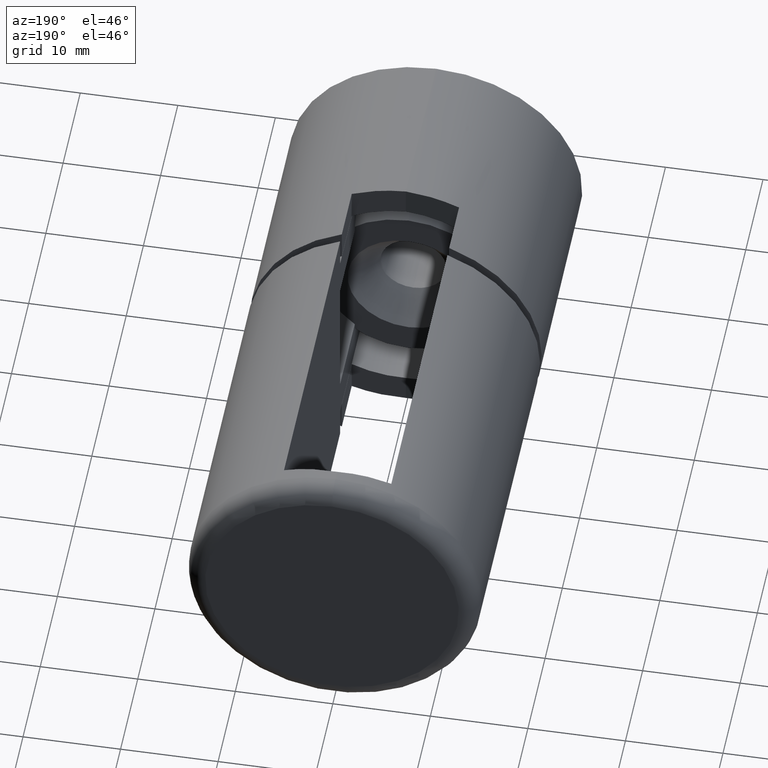
[diagram: clean part render]
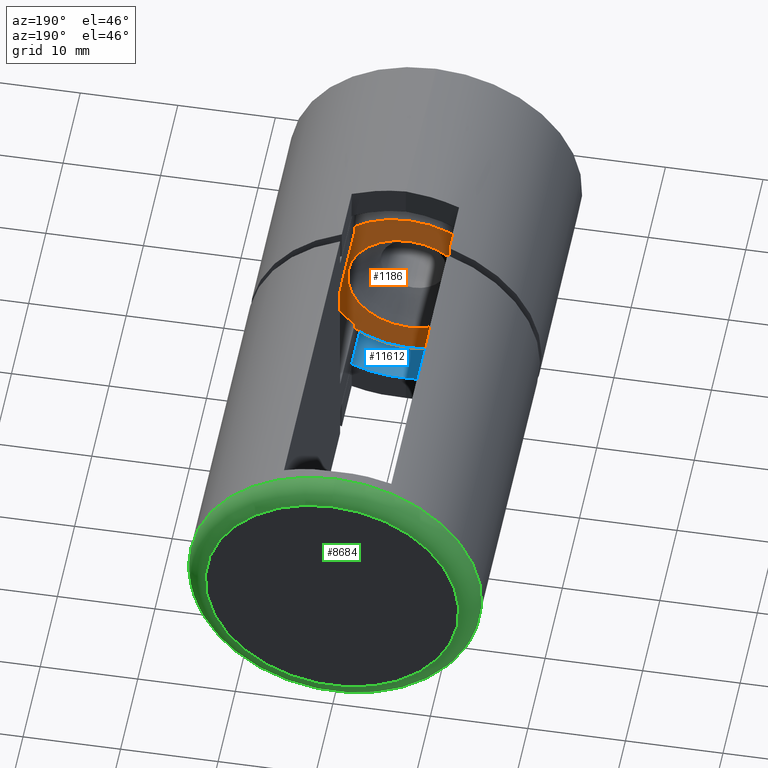
[diagram: same view with three faces highlighted in distinct colors, each labeled with its STEP entity id]
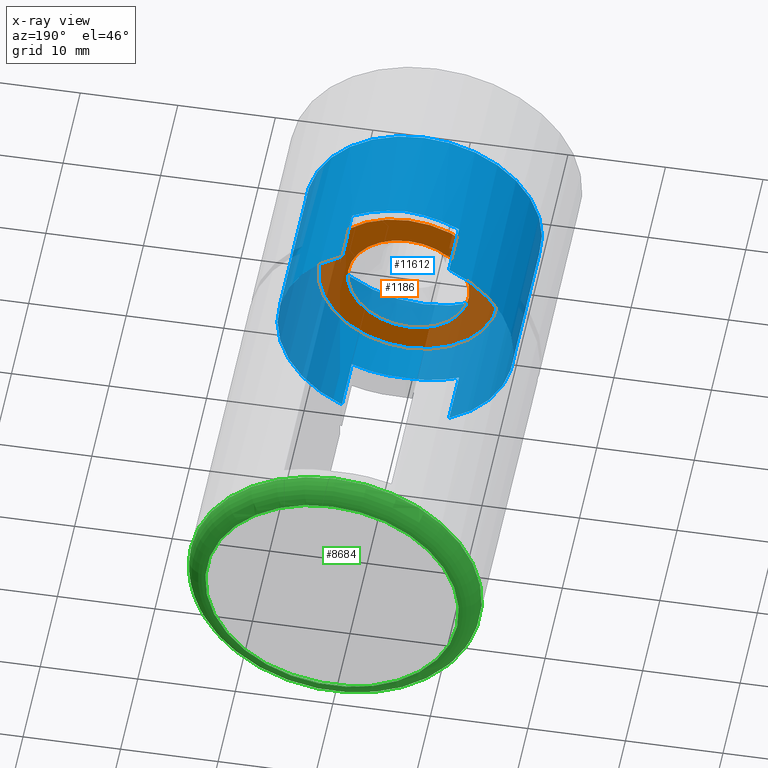
[diagram: x-ray of the same camera — body ghosted, the three highlighted faces saturated]
A machine part, auxiliary view with three faces highlighted in distinct colors.
The next image is the same camera in x-ray (body ghosted, the three faces saturated) — at least one of them is partly hidden behind the body in this view.
Their STEP definitions:

[orange] entity #1186 — the highlighted planar face has unit normal (0, 1, 0).
#1029 = CARTESIAN_POINT ( 'NONE',  ( 0.0000000000000000000, 16.00000000000000000, 0.0000000000000000000 ) ) ;
#1056 = VERTEX_POINT ( 'NONE', #2191 ) ;
#1186 = ADVANCED_FACE ( 'NONE', ( #15478, #1665 ), #15160, .T. ) ;
#1241 = CIRCLE ( 'NONE', #10365, 6.250000000000000000 ) ;
#1665 = FACE_OUTER_BOUND ( 'NONE', #1879, .T. ) ;
#1835 = ORIENTED_EDGE ( 'NONE', *, *, #12628, .F. ) ;
#1879 = EDGE_LOOP ( 'NONE', ( #3131 ) ) ;
#2084 = VERTEX_POINT ( 'NONE', #11602 ) ;
#2191 = CARTESIAN_POINT ( 'NONE',  ( 0.0000000000000000000, 16.00000000000000000, 6.250000000000000000 ) ) ;
#3131 = ORIENTED_EDGE ( 'NONE', *, *, #6588, .T. ) ;
#5511 = DIRECTION ( 'NONE',  ( 0.0000000000000000000, 1.000000000000000000, 0.0000000000000000000 ) ) ;
#5566 = DIRECTION ( 'NONE',  ( 0.0000000000000000000, 0.0000000000000000000, 1.000000000000000000 ) ) ;
#6588 = EDGE_CURVE ( 'NONE', #2084, #2084, #9336, .T. ) ;
#7055 = DIRECTION ( 'NONE',  ( 0.0000000000000000000, 1.000000000000000000, 0.0000000000000000000 ) ) ;
#7738 = AXIS2_PLACEMENT_3D ( 'NONE', #11166, #7055, #8391 ) ;
#8391 = DIRECTION ( 'NONE',  ( 0.0000000000000000000, -0.0000000000000000000, 1.000000000000000000 ) ) ;
#9254 = DIRECTION ( 'NONE',  ( 0.0000000000000000000, 0.0000000000000000000, 1.000000000000000000 ) ) ;
#9336 = CIRCLE ( 'NONE', #11223, 9.250000000000001800 ) ;
#10365 = AXIS2_PLACEMENT_3D ( 'NONE', #1029, #17257, #9254 ) ;
#10753 = CARTESIAN_POINT ( 'NONE',  ( 0.0000000000000000000, 16.00000000000000000, 0.0000000000000000000 ) ) ;
#11166 = CARTESIAN_POINT ( 'NONE',  ( 0.0000000000000000000, 16.00000000000000000, 0.0000000000000000000 ) ) ;
#11223 = AXIS2_PLACEMENT_3D ( 'NONE', #10753, #5511, #5566 ) ;
#11602 = CARTESIAN_POINT ( 'NONE',  ( 0.0000000000000000000, 16.00000000000000000, 9.250000000000001800 ) ) ;
#12628 = EDGE_CURVE ( 'NONE', #1056, #1056, #1241, .T. ) ;
#13186 = EDGE_LOOP ( 'NONE', ( #1835 ) ) ;
#15160 = PLANE ( 'NONE',  #7738 ) ;
#15478 = FACE_BOUND ( 'NONE', #13186, .T. ) ;
#17257 = DIRECTION ( 'NONE',  ( -0.0000000000000000000, 1.000000000000000000, -0.0000000000000000000 ) ) ;

[blue] entity #11612 — the highlighted cylindrical surface (bore or boss wall) has radius 12.1 mm, axis along (0, 1, -0).
#542 = CARTESIAN_POINT ( 'NONE',  ( 3.788877381451983600, 5.851433350462343700, -11.65095847299133100 ) ) ;
#561 = CARTESIAN_POINT ( 'NONE',  ( -5.500000000000000900, 5.761757213943252700, 10.77775486824598300 ) ) ;
#611 = EDGE_CURVE ( 'NONE', #6868, #10276, #17050, .T. ) ;
#756 = CARTESIAN_POINT ( 'NONE',  ( 5.500000000000000900, 16.55000000000000100, 10.77775486824598300 ) ) ;
#763 = AXIS2_PLACEMENT_3D ( 'NONE', #12480, #11371, #13834 ) ;
#778 = VERTEX_POINT ( 'NONE', #2484 ) ;
#1234 = CARTESIAN_POINT ( 'NONE',  ( -5.500000000000000900, 16.55000000000000100, 10.77775486824598300 ) ) ;
#1630 = AXIS2_PLACEMENT_3D ( 'NONE', #6957, #8680, #16579 ) ;
#1793 = LINE ( 'NONE', #7098, #11195 ) ;
#1808 = ORIENTED_EDGE ( 'NONE', *, *, #4570, .F. ) ;
#1913 = CARTESIAN_POINT ( 'NONE',  ( -5.500000000000000900, 5.761757213943252700, -10.77775486824598700 ) ) ;
#1966 = CARTESIAN_POINT ( 'NONE',  ( -5.500000000000000900, 5.761757213943252700, 10.77775486824598300 ) ) ;
#2085 = CARTESIAN_POINT ( 'NONE',  ( 0.0000000000000000000, 6.050000000000001600, -12.10000000000000500 ) ) ;
#2217 = ORIENTED_EDGE ( 'NONE', *, *, #15768, .F. ) ;
#2390 = AXIS2_PLACEMENT_3D ( 'NONE', #6867, #11037, #5976 ) ;
#2404 = CIRCLE ( 'NONE', #1630, 12.10000000000000000 ) ;
#2484 = CARTESIAN_POINT ( 'NONE',  ( 0.0000000000000000000, 6.050000000000001600, 12.09999999999999600 ) ) ;
#2566 = DIRECTION ( 'NONE',  ( 0.0000000000000000000, 1.000000000000000000, 0.0000000000000000000 ) ) ;
#2578 = ORIENTED_EDGE ( 'NONE', *, *, #611, .F. ) ;
#2649 = VERTEX_POINT ( 'NONE', #7808 ) ;
#3348 = AXIS2_PLACEMENT_3D ( 'NONE', #8487, #12509, #8610 ) ;
#3674 =( BOUNDED_CURVE ( )  B_SPLINE_CURVE ( 3, ( #15245, #7202, #7382, #7255 ),
 .UNSPECIFIED., .F., .T. ) 
 B_SPLINE_CURVE_WITH_KNOTS ( ( 4, 4 ),
 ( 4.712388980384689700, 5.184250817664331400 ),
 .UNSPECIFIED. ) 
 CURVE ( )  GEOMETRIC_REPRESENTATION_ITEM ( )  RATIONAL_B_SPLINE_CURVE ( ( 1.000000000000000000, 0.9815314413956836000, 0.9815314413956836000, 1.000000000000000000 ) ) 
 REPRESENTATION_ITEM ( '' )  );
#3722 = CARTESIAN_POINT ( 'NONE',  ( -5.500000000000000900, 5.761757213943252700, -10.77775486824598700 ) ) ;
#3823 = CARTESIAN_POINT ( 'NONE',  ( 5.500000000000000000, 0.0000000000000000000, 10.77775486824598300 ) ) ;
#4181 = VERTEX_POINT ( 'NONE', #8723 ) ;
#4413 = VECTOR ( 'NONE', #10252, 1000.000000000000000 ) ;
#4570 = EDGE_CURVE ( 'NONE', #7669, #15937, #17064, .T. ) ;
#4578 = CYLINDRICAL_SURFACE ( 'NONE', #2390, 12.10000000000000000 ) ;
#4595 = EDGE_CURVE ( 'NONE', #4181, #13149, #10641, .T. ) ;
#4776 = CARTESIAN_POINT ( 'NONE',  ( -1.921047930439759200, 5.949322144069364000, -12.10000000000000000 ) ) ;
#4812 = CARTESIAN_POINT ( 'NONE',  ( 1.921047930439763000, 5.949322144069364000, -12.10000000000000000 ) ) ;
#4894 = ORIENTED_EDGE ( 'NONE', *, *, #8502, .F. ) ;
#5009 = CARTESIAN_POINT ( 'NONE',  ( -3.788877381451979600, 5.851433350462343700, -11.65095847299133400 ) ) ;
#5509 = CIRCLE ( 'NONE', #3348, 12.10000000000000000 ) ;
#5976 = DIRECTION ( 'NONE',  ( 0.0000000000000000000, 0.0000000000000000000, -1.000000000000000000 ) ) ;
#6073 = CIRCLE ( 'NONE', #763, 12.10000000000000000 ) ;
#6294 = FACE_OUTER_BOUND ( 'NONE', #12872, .T. ) ;
#6557 = DIRECTION ( 'NONE',  ( -0.0000000000000000000, -1.000000000000000000, -0.0000000000000000000 ) ) ;
#6867 = CARTESIAN_POINT ( 'NONE',  ( 0.0000000000000000000, 16.55000000000000100, 0.0000000000000000000 ) ) ;
#6868 = VERTEX_POINT ( 'NONE', #16888 ) ;
#6957 = CARTESIAN_POINT ( 'NONE',  ( 0.0000000000000000000, 0.0000000000000000000, 0.0000000000000000000 ) ) ;
#7018 = EDGE_LOOP ( 'NONE', ( #2578, #4894, #10635, #16795, #17135, #2217, #15823, #1808, #17189, #10526 ) ) ;
#7098 = CARTESIAN_POINT ( 'NONE',  ( -5.500000000000000900, 16.55000000000000100, -10.77775486824598300 ) ) ;
#7202 = CARTESIAN_POINT ( 'NONE',  ( 1.921047930439759200, 5.949322144069364000, 12.10000000000000000 ) ) ;
#7255 = CARTESIAN_POINT ( 'NONE',  ( 5.500000000000000900, 5.761757213943252700, 10.77775486824598300 ) ) ;
#7382 = CARTESIAN_POINT ( 'NONE',  ( 3.788877381451979600, 5.851433350462343700, 11.65095847299133400 ) ) ;
#7477 = CARTESIAN_POINT ( 'NONE',  ( 5.500000000000000900, 16.55000000000000100, -10.77775486824598300 ) ) ;
#7637 = CARTESIAN_POINT ( 'NONE',  ( 5.500000000000000900, 5.761757213943252700, 10.77775486824598300 ) ) ;
#7669 = VERTEX_POINT ( 'NONE', #7637 ) ;
#7808 = CARTESIAN_POINT ( 'NONE',  ( 5.500000000000000900, 0.0000000000000000000, -10.77775486824598300 ) ) ;
#7853 =( BOUNDED_CURVE ( )  B_SPLINE_CURVE ( 3, ( #561, #14522, #14754, #14932 ),
 .UNSPECIFIED., .F., .T. ) 
 B_SPLINE_CURVE_WITH_KNOTS ( ( 4, 4 ),
 ( 1.098934489515254600, 1.570796326794896600 ),
 .UNSPECIFIED. ) 
 CURVE ( )  GEOMETRIC_REPRESENTATION_ITEM ( )  RATIONAL_B_SPLINE_CURVE ( ( 1.000000000000000000, 0.9815314413956836000, 0.9815314413956836000, 1.000000000000000000 ) ) 
 REPRESENTATION_ITEM ( '' )  );
#7913 = EDGE_CURVE ( 'NONE', #9173, #4181, #8926, .T. ) ;
#8139 = EDGE_CURVE ( 'NONE', #13149, #8997, #1793, .T. ) ;
#8373 = FACE_OUTER_BOUND ( 'NONE', #7018, .T. ) ;
#8487 = CARTESIAN_POINT ( 'NONE',  ( 0.0000000000000000000, 0.0000000000000000000, 0.0000000000000000000 ) ) ;
#8502 = EDGE_CURVE ( 'NONE', #8997, #6868, #2404, .T. ) ;
#8556 = CARTESIAN_POINT ( 'NONE',  ( 5.500000000000000900, 5.761757213943252700, -10.77775486824598300 ) ) ;
#8588 = VERTEX_POINT ( 'NONE', #11717 ) ;
#8610 = DIRECTION ( 'NONE',  ( 0.0000000000000000000, 0.0000000000000000000, 1.000000000000000000 ) ) ;
#8680 = DIRECTION ( 'NONE',  ( 0.0000000000000000000, 1.000000000000000000, 0.0000000000000000000 ) ) ;
#8723 = CARTESIAN_POINT ( 'NONE',  ( 0.0000000000000000000, 6.050000000000001600, -12.10000000000000500 ) ) ;
#8926 =( BOUNDED_CURVE ( )  B_SPLINE_CURVE ( 3, ( #8556, #542, #4812, #10180 ),
 .UNSPECIFIED., .F., .F. ) 
 B_SPLINE_CURVE_WITH_KNOTS ( ( 4, 4 ),
 ( 1.098934489515254600, 1.570796326794896600 ),
 .UNSPECIFIED. ) 
 CURVE ( )  GEOMETRIC_REPRESENTATION_ITEM ( )  RATIONAL_B_SPLINE_CURVE ( ( 1.000000000000000000, 0.9815314413956836000, 0.9815314413956836000, 1.000000000000000000 ) ) 
 REPRESENTATION_ITEM ( '' )  );
#8997 = VERTEX_POINT ( 'NONE', #10897 ) ;
#9173 = VERTEX_POINT ( 'NONE', #10172 ) ;
#9481 = EDGE_CURVE ( 'NONE', #10276, #778, #7853, .T. ) ;
#10172 = CARTESIAN_POINT ( 'NONE',  ( 5.500000000000000900, 5.761757213943252700, -10.77775486824598300 ) ) ;
#10180 = CARTESIAN_POINT ( 'NONE',  ( 0.0000000000000000000, 6.050000000000001600, -12.10000000000000500 ) ) ;
#10252 = DIRECTION ( 'NONE',  ( 0.0000000000000000000, 1.000000000000000000, 0.0000000000000000000 ) ) ;
#10276 = VERTEX_POINT ( 'NONE', #1966 ) ;
#10526 = ORIENTED_EDGE ( 'NONE', *, *, #9481, .F. ) ;
#10635 = ORIENTED_EDGE ( 'NONE', *, *, #8139, .F. ) ;
#10641 =( BOUNDED_CURVE ( )  B_SPLINE_CURVE ( 3, ( #2085, #4776, #5009, #3722 ),
 .UNSPECIFIED., .F., .F. ) 
 B_SPLINE_CURVE_WITH_KNOTS ( ( 4, 4 ),
 ( 4.712388980384689700, 5.184250817664331400 ),
 .UNSPECIFIED. ) 
 CURVE ( )  GEOMETRIC_REPRESENTATION_ITEM ( )  RATIONAL_B_SPLINE_CURVE ( ( 1.000000000000000000, 0.9815314413956836000, 0.9815314413956836000, 1.000000000000000000 ) ) 
 REPRESENTATION_ITEM ( '' )  );
#10785 = VECTOR ( 'NONE', #2566, 1000.000000000000000 ) ;
#10897 = CARTESIAN_POINT ( 'NONE',  ( -5.500000000000000000, 0.0000000000000000000, -10.77775486824598300 ) ) ;
#11037 = DIRECTION ( 'NONE',  ( -0.0000000000000000000, -1.000000000000000000, -0.0000000000000000000 ) ) ;
#11195 = VECTOR ( 'NONE', #6557, 1000.000000000000000 ) ;
#11371 = DIRECTION ( 'NONE',  ( 0.0000000000000000000, 1.000000000000000000, 0.0000000000000000000 ) ) ;
#11438 = DIRECTION ( 'NONE',  ( -0.0000000000000000000, -1.000000000000000000, -0.0000000000000000000 ) ) ;
#11612 = ADVANCED_FACE ( 'NONE', ( #8373, #6294 ), #4578, .F. ) ;
#11717 = CARTESIAN_POINT ( 'NONE',  ( 0.0000000000000000000, 16.55000000000000100, 12.10000000000000000 ) ) ;
#12249 = EDGE_CURVE ( 'NONE', #8588, #8588, #6073, .T. ) ;
#12480 = CARTESIAN_POINT ( 'NONE',  ( 0.0000000000000000000, 16.55000000000000100, 0.0000000000000000000 ) ) ;
#12509 = DIRECTION ( 'NONE',  ( 0.0000000000000000000, 1.000000000000000000, 0.0000000000000000000 ) ) ;
#12872 = EDGE_LOOP ( 'NONE', ( #14560 ) ) ;
#13149 = VERTEX_POINT ( 'NONE', #1913 ) ;
#13834 = DIRECTION ( 'NONE',  ( 0.0000000000000000000, 0.0000000000000000000, 1.000000000000000000 ) ) ;
#14522 = CARTESIAN_POINT ( 'NONE',  ( -3.788877381451983600, 5.851433350462343700, 11.65095847299133100 ) ) ;
#14560 = ORIENTED_EDGE ( 'NONE', *, *, #12249, .T. ) ;
#14747 = EDGE_CURVE ( 'NONE', #15937, #2649, #5509, .T. ) ;
#14754 = CARTESIAN_POINT ( 'NONE',  ( -1.921047930439763000, 5.949322144069364000, 12.10000000000000000 ) ) ;
#14932 = CARTESIAN_POINT ( 'NONE',  ( 0.0000000000000000000, 6.050000000000001600, 12.09999999999999600 ) ) ;
#15245 = CARTESIAN_POINT ( 'NONE',  ( 0.0000000000000000000, 6.050000000000001600, 12.09999999999999600 ) ) ;
#15768 = EDGE_CURVE ( 'NONE', #2649, #9173, #16509, .T. ) ;
#15810 = VECTOR ( 'NONE', #11438, 1000.000000000000000 ) ;
#15823 = ORIENTED_EDGE ( 'NONE', *, *, #14747, .F. ) ;
#15937 = VERTEX_POINT ( 'NONE', #3823 ) ;
#16073 = EDGE_CURVE ( 'NONE', #778, #7669, #3674, .T. ) ;
#16509 = LINE ( 'NONE', #7477, #4413 ) ;
#16579 = DIRECTION ( 'NONE',  ( 0.0000000000000000000, 0.0000000000000000000, 1.000000000000000000 ) ) ;
#16795 = ORIENTED_EDGE ( 'NONE', *, *, #4595, .F. ) ;
#16888 = CARTESIAN_POINT ( 'NONE',  ( -5.500000000000000000, 0.0000000000000000000, 10.77775486824598300 ) ) ;
#17050 = LINE ( 'NONE', #1234, #10785 ) ;
#17064 = LINE ( 'NONE', #756, #15810 ) ;
#17135 = ORIENTED_EDGE ( 'NONE', *, *, #7913, .F. ) ;
#17189 = ORIENTED_EDGE ( 'NONE', *, *, #16073, .F. ) ;

[green] entity #8684 — the highlighted toroidal blend (fillet) surface has major radius 13 mm and minor (blend) radius 2 mm.
#121 = FACE_OUTER_BOUND ( 'NONE', #10129, .T. ) ;
#397 = CIRCLE ( 'NONE', #1356, 15.00000000000000000 ) ;
#1268 = ORIENTED_EDGE ( 'NONE', *, *, #10181, .F. ) ;
#1356 = AXIS2_PLACEMENT_3D ( 'NONE', #13609, #12540, #12646 ) ;
#2188 = TOROIDAL_SURFACE ( 'NONE', #10927, 13.00000000000000000, 2.000000000000000000 ) ;
#2443 = EDGE_CURVE ( 'NONE', #10254, #10254, #397, .T. ) ;
#4892 = CARTESIAN_POINT ( 'NONE',  ( 0.0000000000000000000, 1.500000000000000000, -13.00000000000000000 ) ) ;
#5762 = FACE_OUTER_BOUND ( 'NONE', #10005, .T. ) ;
#6499 = ORIENTED_EDGE ( 'NONE', *, *, #2443, .F. ) ;
#7881 = DIRECTION ( 'NONE',  ( 0.0000000000000000000, 0.0000000000000000000, -1.000000000000000000 ) ) ;
#8684 = ADVANCED_FACE ( 'NONE', ( #5762, #121 ), #2188, .T. ) ;
#9809 = CARTESIAN_POINT ( 'NONE',  ( 0.0000000000000000000, 1.500000000000000000, 0.0000000000000000000 ) ) ;
#10005 = EDGE_LOOP ( 'NONE', ( #6499 ) ) ;
#10129 = EDGE_LOOP ( 'NONE', ( #1268 ) ) ;
#10181 = EDGE_CURVE ( 'NONE', #12969, #12969, #14519, .T. ) ;
#10254 = VERTEX_POINT ( 'NONE', #16927 ) ;
#10736 = CARTESIAN_POINT ( 'NONE',  ( 0.0000000000000000000, 3.500000000000003100, 0.0000000000000000000 ) ) ;
#10927 = AXIS2_PLACEMENT_3D ( 'NONE', #10736, #13301, #7881 ) ;
#11270 = DIRECTION ( 'NONE',  ( 0.0000000000000000000, 0.0000000000000000000, -1.000000000000000000 ) ) ;
#12540 = DIRECTION ( 'NONE',  ( -0.0000000000000000000, 1.000000000000000000, -0.0000000000000000000 ) ) ;
#12646 = DIRECTION ( 'NONE',  ( 0.0000000000000000000, 0.0000000000000000000, -1.000000000000000000 ) ) ;
#12969 = VERTEX_POINT ( 'NONE', #4892 ) ;
#13301 = DIRECTION ( 'NONE',  ( 0.0000000000000000000, -1.000000000000000000, 0.0000000000000000000 ) ) ;
#13609 = CARTESIAN_POINT ( 'NONE',  ( 0.0000000000000000000, 3.500000000000003100, 0.0000000000000000000 ) ) ;
#13794 = DIRECTION ( 'NONE',  ( 0.0000000000000000000, -1.000000000000000000, 0.0000000000000000000 ) ) ;
#14519 = CIRCLE ( 'NONE', #14966, 13.00000000000000000 ) ;
#14966 = AXIS2_PLACEMENT_3D ( 'NONE', #9809, #13794, #11270 ) ;
#16927 = CARTESIAN_POINT ( 'NONE',  ( 0.0000000000000000000, 3.500000000000003100, -15.00000000000000000 ) ) ;